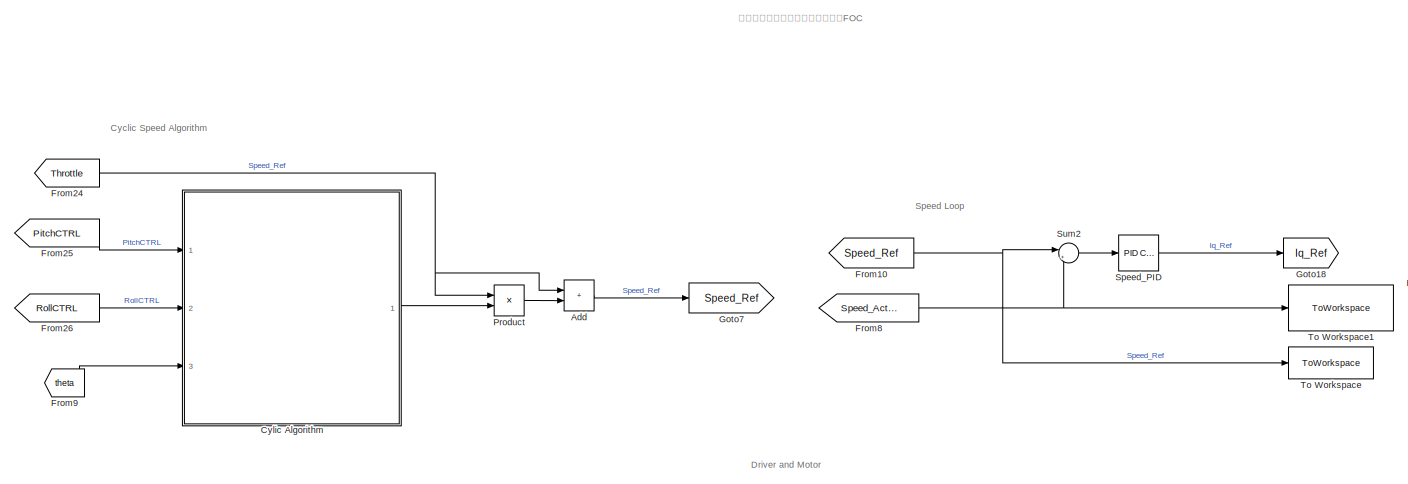
[diagram: root canvas - part 1/4, top left region]
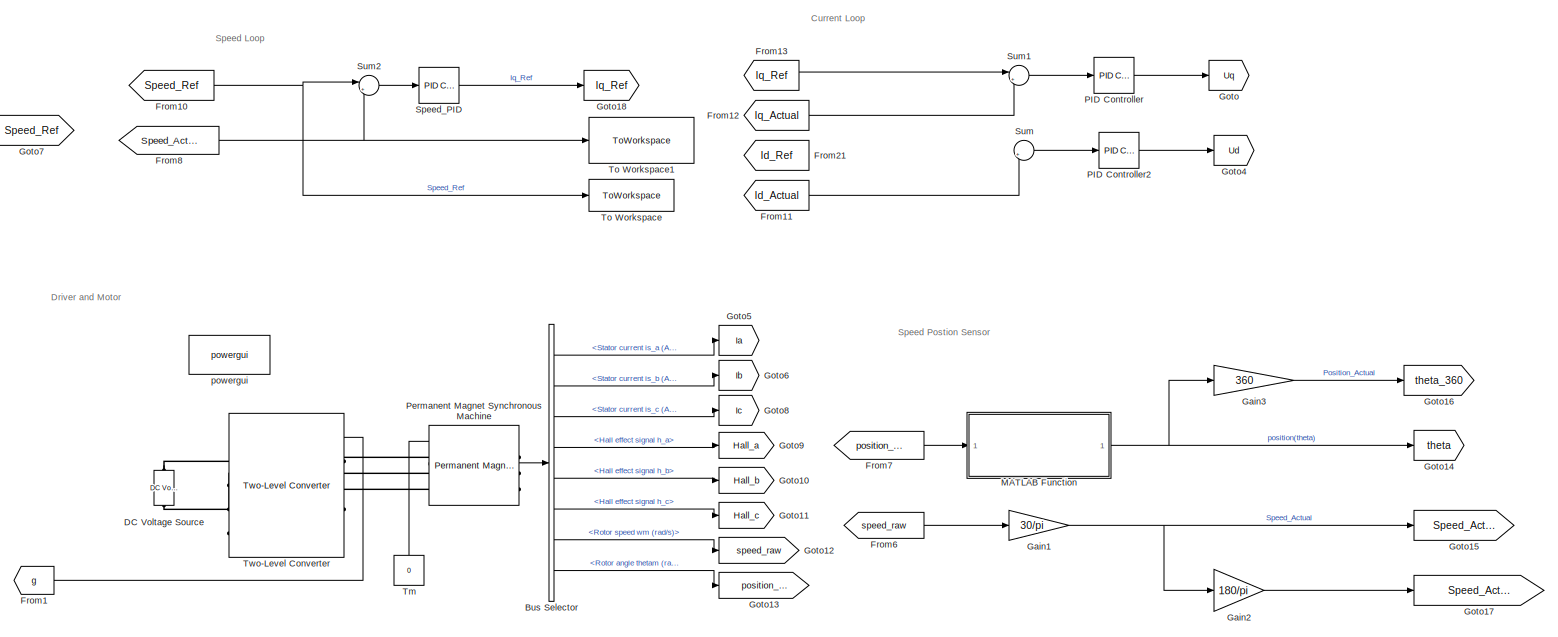
[diagram: root canvas - part 2/4, top center region]
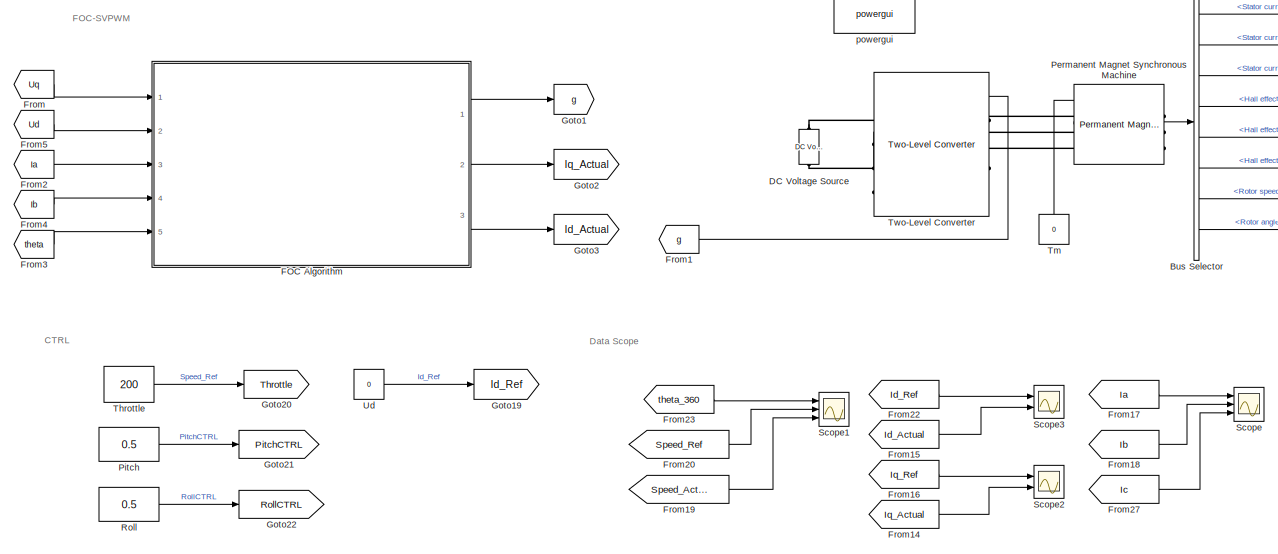
[diagram: root canvas - part 3/4, middle left region]
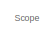
[diagram: root canvas - part 4/4, bottom right region]
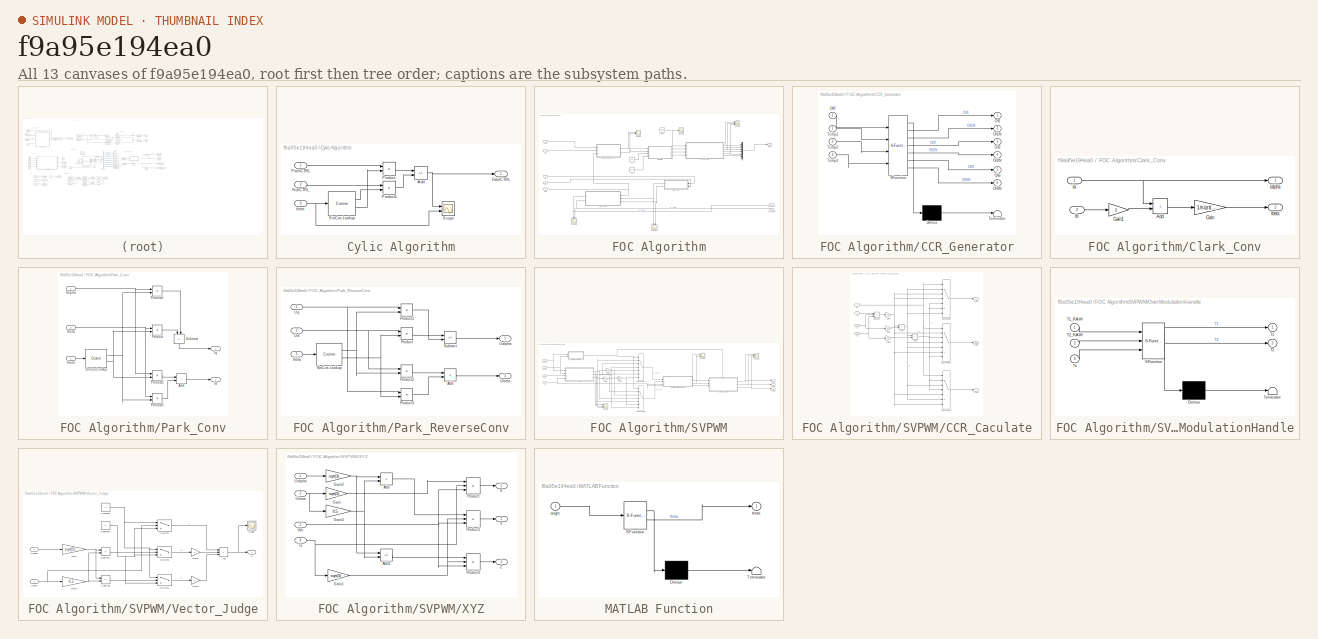
[diagram: thumbnail index - all 13 canvases of the model, root first then tree order]
MODEL slx_f9a95e194ea0
KIND model
CONFIG AbsTol = auto
CONFIG EnableMultiTasking = off
CONFIG FixedStep = 0.0001
CONFIG MaxStep = auto
CONFIG MinStep = auto
CONFIG RelTol = 1e-3
CONFIG SampleTimeConstraint = Unconstrained
CONFIG SolverName = FixedStepDiscrete
CONFIG StartTime = 0.0
CONFIG StopTime = 1
BLOCK [Sum] Add
  IconShape = rectangular
  Ports = [2, 1]
BLOCK [BusSelector] Bus Selector
  OutputSignals = Stator current is_a (A),Stator current is_b (A),Stator current is_c (A),Hall effect signal h_a,Hall effect signal h_b,Hall effect signal h_c,Rotor speed wm (rad/s),Rotor angle thetam (rad)
  Ports = [1, 8]
BLOCK [SubSystem] Cylic Algorithm
  Ports = [3, 1]
  RequestExecContextInheritance = off
BLOCK [Sum] Cylic Algorithm/Add
  IconShape = rectangular
  Inputs = --
  Ports = [2, 1]
BLOCK [Outport] Cylic Algorithm/FatorCTRL
BLOCK [Inport] Cylic Algorithm/PitchCTRL
BLOCK [Product] Cylic Algorithm/Product
  Ports = [2, 1]
BLOCK [Product] Cylic Algorithm/Product1
  Ports = [2, 1]
BLOCK [Inport] Cylic Algorithm/RollCTRL
  Port = 2
BLOCK [Scope] Cylic Algorithm/Scope
  Floating = off
  NumInputPorts = 2
  Ports = [2]
  ScopeSpecificationString = Simulink.scopes.TimeScopeBlockCfg('CurrentConfiguration', extmgr.ConfigurationSet(extmgr.Configuration('Core','General UI',true),extmgr.Configuration('Core','Source UI',true),extmgr.Configuration('Sources','WiredSimulink',true,'DataLoggingVariableName','ScopeData5'),extmgr.Configuration('Visuals','Time Domain',true,'SerializedDisplays',{struct('MinYLimReal','-1.205','MaxYLimReal','1.245','YLabelRe...<+1546ch>
BLOCK [Reference] Cylic Algorithm/SinCos Lookup  REF=simulink/Lookup
Tables/Cosine
  Ports = [1, 2]
  SourceBlock = simulink/Lookup\nTables/Cosine
  SourceProductBaseCode = SL
  SourceType = Sine and Cosine
BLOCK [Inport] Cylic Algorithm/theta
  Port = 3
BLOCK [Reference] DC Voltage Source  REF=spsDCVoltageSourceLib/DC Voltage Source
  NameLocation = top
  Ports = [0, 0, 0, 0, 0, 1, 1]
  SourceBlock = spsDCVoltageSourceLib/DC Voltage Source
  SourceProductBaseCode = PS
  SourceType = DC Voltage Source
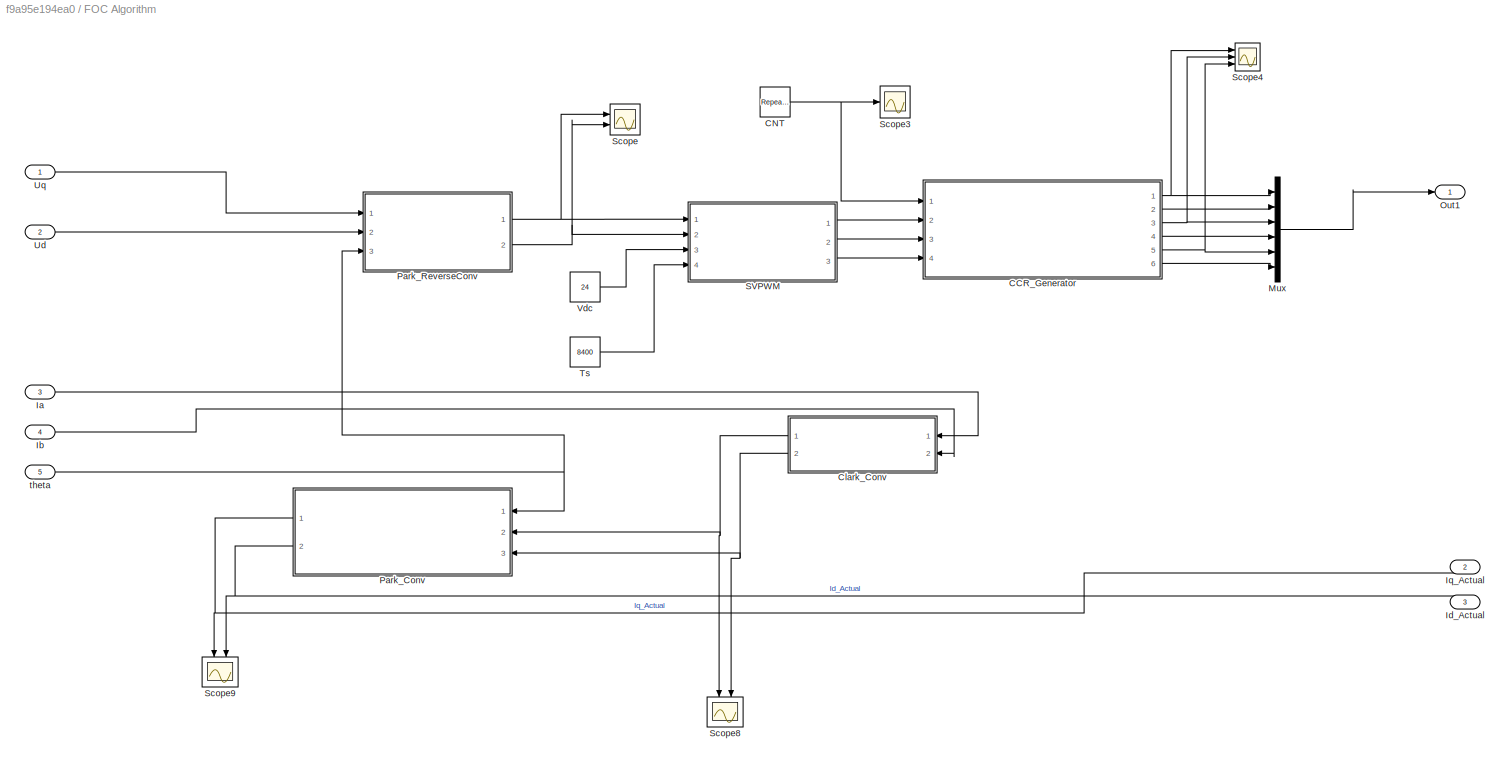
BLOCK [SubSystem] FOC Algorithm
  Ports = [5, 3]
  RequestExecContextInheritance = off
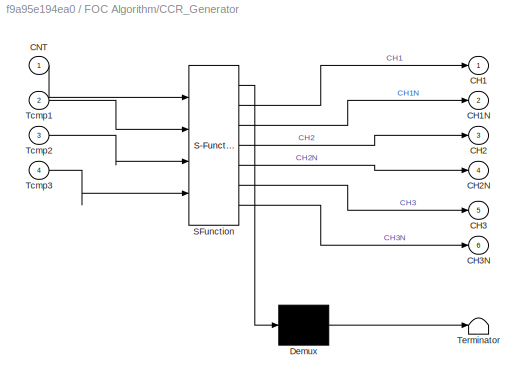
BLOCK [SubSystem] FOC Algorithm/CCR_Generator
  ErrorFcn = Stateflow.Translate.translate
  PermitHierarchicalResolution = ExplicitOnly
  Ports = [4, 6]
  RequestExecContextInheritance = off
  SFBlockType = MATLAB Function
  TreatAsAtomicUnit = on
BLOCK [Demux] FOC Algorithm/CCR_Generator/ Demux 
  Outputs = 1
  Ports = [1, 1]
BLOCK [S-Function] FOC Algorithm/CCR_Generator/ SFunction 
  EnableBusSupport = on
  FunctionName = sf_sfun
  PortCounts = [4 7]
  Ports = [4, 7]
  SFcnIsStateOwnerBlock = off
  SFunctionDeploymentMode = off
  Tag = Stateflow S-Function 1
BLOCK [Terminator] FOC Algorithm/CCR_Generator/ Terminator 
BLOCK [Outport] FOC Algorithm/CCR_Generator/CH1
BLOCK [Outport] FOC Algorithm/CCR_Generator/CH1N
  Port = 2
BLOCK [Outport] FOC Algorithm/CCR_Generator/CH2
  Port = 3
BLOCK [Outport] FOC Algorithm/CCR_Generator/CH2N
  Port = 4
BLOCK [Outport] FOC Algorithm/CCR_Generator/CH3
  Port = 5
BLOCK [Outport] FOC Algorithm/CCR_Generator/CH3N
  Port = 6
BLOCK [Inport] FOC Algorithm/CCR_Generator/CNT
BLOCK [Inport] FOC Algorithm/CCR_Generator/Tcmp1
  Port = 2
BLOCK [Inport] FOC Algorithm/CCR_Generator/Tcmp2
  Port = 3
BLOCK [Inport] FOC Algorithm/CCR_Generator/Tcmp3
  Port = 4
BLOCK [Reference] FOC Algorithm/CNT  REF=simulink/Sources/Repeating
Sequence
  Ports = [0, 1]
  SourceBlock = simulink/Sources/Repeating\nSequence
  SourceProductBaseCode = SL
  SourceType = Repeating table
BLOCK [SubSystem] FOC Algorithm/Clark_Conv
  Ports = [2, 2]
  RequestExecContextInheritance = off
BLOCK [Sum] FOC Algorithm/Clark_Conv/Add
  IconShape = rectangular
  Ports = [2, 1]
BLOCK [Gain] FOC Algorithm/Clark_Conv/Gain
  Gain = 1/sqrt(3)
BLOCK [Gain] FOC Algorithm/Clark_Conv/Gain1
  Gain = 2
BLOCK [Inport] FOC Algorithm/Clark_Conv/Ia
BLOCK [Outport] FOC Algorithm/Clark_Conv/Ialpha
BLOCK [Inport] FOC Algorithm/Clark_Conv/Ib
  Port = 2
BLOCK [Outport] FOC Algorithm/Clark_Conv/Ibeta
  Port = 2
BLOCK [Inport] FOC Algorithm/Ia
  Port = 3
BLOCK [Inport] FOC Algorithm/Ib
  Port = 4
BLOCK [Outport] FOC Algorithm/Id_Actual
  Port = 3
BLOCK [Outport] FOC Algorithm/Iq_Actual
  Port = 2
BLOCK [Mux] FOC Algorithm/Mux
  DisplayOption = bar
  Inputs = 6
  Ports = [6, 1]
BLOCK [Outport] FOC Algorithm/Out1
BLOCK [SubSystem] FOC Algorithm/Park_Conv
  Ports = [3, 2]
  RequestExecContextInheritance = off
BLOCK [Sum] FOC Algorithm/Park_Conv/Add
  IconShape = rectangular
  Ports = [2, 1]
BLOCK [Inport] FOC Algorithm/Park_Conv/Ialpha
  Port = 2
BLOCK [Inport] FOC Algorithm/Park_Conv/Ibeta
  Port = 3
BLOCK [Outport] FOC Algorithm/Park_Conv/Id
  Port = 2
BLOCK [Outport] FOC Algorithm/Park_Conv/Iq
BLOCK [Product] FOC Algorithm/Park_Conv/Product
  Ports = [2, 1]
BLOCK [Product] FOC Algorithm/Park_Conv/Product1
  Ports = [2, 1]
BLOCK [Product] FOC Algorithm/Park_Conv/Product2
  Ports = [2, 1]
BLOCK [Product] FOC Algorithm/Park_Conv/Product3
  Ports = [2, 1]
BLOCK [Reference] FOC Algorithm/Park_Conv/SinCos Lookup  REF=simulink/Lookup
Tables/Cosine
  Ports = [1, 2]
  SourceBlock = simulink/Lookup\nTables/Cosine
  SourceProductBaseCode = SL
  SourceType = Sine and Cosine
BLOCK [Sum] FOC Algorithm/Park_Conv/Subtract
  IconShape = rectangular
  Inputs = +-
  NameLocation = right
  Ports = [2, 1]
BLOCK [Inport] FOC Algorithm/Park_Conv/theta
BLOCK [SubSystem] FOC Algorithm/Park_ReverseConv
  Ports = [3, 2]
  RequestExecContextInheritance = off
BLOCK [Sum] FOC Algorithm/Park_ReverseConv/Add
  IconShape = rectangular
  Ports = [2, 1]
BLOCK [Product] FOC Algorithm/Park_ReverseConv/Product
  Ports = [2, 1]
BLOCK [Product] FOC Algorithm/Park_ReverseConv/Product1
  Ports = [2, 1]
BLOCK [Product] FOC Algorithm/Park_ReverseConv/Product2
  Ports = [2, 1]
BLOCK [Product] FOC Algorithm/Park_ReverseConv/Product3
  Ports = [2, 1]
BLOCK [Reference] FOC Algorithm/Park_ReverseConv/SinCos Lookup  REF=simulink/Lookup
Tables/Cosine
  Ports = [1, 2]
  SourceBlock = simulink/Lookup\nTables/Cosine
  SourceProductBaseCode = SL
  SourceType = Sine and Cosine
BLOCK [Sum] FOC Algorithm/Park_ReverseConv/Subtract
  IconShape = rectangular
  Inputs = +-
  Ports = [2, 1]
BLOCK [Outport] FOC Algorithm/Park_ReverseConv/Ualpha
BLOCK [Outport] FOC Algorithm/Park_ReverseConv/Ubeta
  Port = 2
BLOCK [Inport] FOC Algorithm/Park_ReverseConv/Ud
  Port = 2
BLOCK [Inport] FOC Algorithm/Park_ReverseConv/Uq
BLOCK [Inport] FOC Algorithm/Park_ReverseConv/theta
  Port = 3
BLOCK [SubSystem] FOC Algorithm/SVPWM
  Ports = [4, 3]
  RequestExecContextInheritance = off
BLOCK [SubSystem] FOC Algorithm/SVPWM/CCR_Caculate
  PortSchema = {"entries":[{"content":{"sides":[{"content":{"connectorIds":["In1","In2","In3"]},"type":"ConnectorPlacement.EquallySpacedRectSide","uuid":"41d89106-695f-4d7e-9c99-c52170b99868"},{"content":{"connectorIds":["Out1","Out2","Out3"],"side":"RIGHT"},"type":"ConnectorPlacement.EquallySpacedRectSide","uuid":"0fa1e6b9-7088-4c16-9dd3-c016449aae3e"},{"content":{"connectorIds":["In4"],"side":"TOP"},"type":"Co...<+271ch>
  Ports = [4, 3]
  RequestExecContextInheritance = off
BLOCK [Sum] FOC Algorithm/SVPWM/CCR_Caculate/Add
  IconShape = rectangular
  Ports = [2, 1]
BLOCK [Sum] FOC Algorithm/SVPWM/CCR_Caculate/Add1
  IconShape = rectangular
  Ports = [2, 1]
BLOCK [Gain] FOC Algorithm/SVPWM/CCR_Caculate/Gain
  Gain = 1/4
BLOCK [Gain] FOC Algorithm/SVPWM/CCR_Caculate/Gain1
  Gain = 1/2
BLOCK [Gain] FOC Algorithm/SVPWM/CCR_Caculate/Gain2
  Gain = 1/2
BLOCK [MultiPortSwitch] FOC Algorithm/SVPWM/CCR_Caculate/Index Vector
  InputSameDT = off
  Inputs = 6
  Ports = [7, 1]
  SaturateOnIntegerOverflow = off
BLOCK [MultiPortSwitch] FOC Algorithm/SVPWM/CCR_Caculate/Index Vector1
  InputSameDT = off
  Inputs = 6
  Ports = [7, 1]
  SaturateOnIntegerOverflow = off
BLOCK [MultiPortSwitch] FOC Algorithm/SVPWM/CCR_Caculate/Index Vector2
  InputSameDT = off
  Inputs = 6
  Ports = [7, 1]
  SaturateOnIntegerOverflow = off
BLOCK [Inport] FOC Algorithm/SVPWM/CCR_Caculate/N
  Port = 4
BLOCK [Sum] FOC Algorithm/SVPWM/CCR_Caculate/Subtract
  IconShape = rectangular
  Inputs = +--
  Ports = [3, 1]
BLOCK [Inport] FOC Algorithm/SVPWM/CCR_Caculate/T1
BLOCK [Inport] FOC Algorithm/SVPWM/CCR_Caculate/T2
  Port = 2
BLOCK [Outport] FOC Algorithm/SVPWM/CCR_Caculate/Tcmp1
BLOCK [Outport] FOC Algorithm/SVPWM/CCR_Caculate/Tcmp2
  Port = 2
BLOCK [Outport] FOC Algorithm/SVPWM/CCR_Caculate/Tcmp3
  Port = 3
BLOCK [Inport] FOC Algorithm/SVPWM/CCR_Caculate/Ts
  Port = 3
BLOCK [Gain] FOC Algorithm/SVPWM/Gain
  Gain = -1
BLOCK [Gain] FOC Algorithm/SVPWM/Gain1
  Gain = -1
BLOCK [Gain] FOC Algorithm/SVPWM/Gain2
  Gain = -1
BLOCK [MultiPortSwitch] FOC Algorithm/SVPWM/Index Vector
  InputSameDT = off
  Inputs = 6
  Ports = [7, 1]
  SaturateOnIntegerOverflow = off
BLOCK [MultiPortSwitch] FOC Algorithm/SVPWM/Index Vector1
  InputSameDT = off
  Inputs = 6
  Ports = [7, 1]
  SaturateOnIntegerOverflow = off
BLOCK [SubSystem] FOC Algorithm/SVPWM/OverModulationHandle
  ErrorFcn = Stateflow.Translate.translate
  PermitHierarchicalResolution = ExplicitOnly
  Ports = [3, 2]
  RequestExecContextInheritance = off
  SFBlockType = MATLAB Function
  TreatAsAtomicUnit = on
BLOCK [Demux] FOC Algorithm/SVPWM/OverModulationHandle/ Demux 
  Outputs = 1
  Ports = [1, 1]
BLOCK [S-Function] FOC Algorithm/SVPWM/OverModulationHandle/ SFunction 
  EnableBusSupport = on
  FunctionName = sf_sfun
  PortCounts = [3 3]
  Ports = [3, 3]
  SFcnIsStateOwnerBlock = off
  SFunctionDeploymentMode = off
  Tag = Stateflow S-Function 2
BLOCK [Terminator] FOC Algorithm/SVPWM/OverModulationHandle/ Terminator 
BLOCK [Outport] FOC Algorithm/SVPWM/OverModulationHandle/T1
BLOCK [Inport] FOC Algorithm/SVPWM/OverModulationHandle/T1_RAW
BLOCK [Outport] FOC Algorithm/SVPWM/OverModulationHandle/T2
  Port = 2
BLOCK [Inport] FOC Algorithm/SVPWM/OverModulationHandle/T2_RAW
  Port = 2
BLOCK [Inport] FOC Algorithm/SVPWM/OverModulationHandle/Ts
  Port = 3
BLOCK [Scope] FOC Algorithm/SVPWM/Scope
  Floating = off
  NumInputPorts = 3
  Ports = [3]
  ScopeSpecificationString = Simulink.scopes.TimeScopeBlockCfg('CurrentConfiguration', extmgr.ConfigurationSet(extmgr.Configuration('Core','General UI',true),extmgr.Configuration('Core','Source UI',true),extmgr.Configuration('Sources','WiredSimulink',true,'DataLoggingVariableName','ScopeData2'),extmgr.Configuration('Visuals','Time Domain',true,'SerializedDisplays',{struct('MinYLimReal','-10840.7399','MaxYLimReal','10882.04333...<+1438ch>
BLOCK [Scope] FOC Algorithm/SVPWM/Scope1
  Floating = off
  NumInputPorts = 2
  Ports = [2]
  ScopeSpecificationString = Simulink.scopes.TimeScopeBlockCfg('CurrentConfiguration', extmgr.ConfigurationSet(extmgr.Configuration('Core','General UI',true),extmgr.Configuration('Core','Source UI',true),extmgr.Configuration('Sources','WiredSimulink',true,'DataLoggingVariableName','ScopeData3'),extmgr.Configuration('Visuals','Time Domain',true,'SerializedDisplays',{struct('MinYLimReal','-881.09887','MaxYLimReal','7929.96151',...<+1456ch>
BLOCK [Scope] FOC Algorithm/SVPWM/Scope2
  Floating = off
  NumInputPorts = 3
  Ports = [3]
  ScopeSpecificationString = Simulink.scopes.TimeScopeBlockCfg('CurrentConfiguration', extmgr.ConfigurationSet(extmgr.Configuration('Core','General UI',true),extmgr.Configuration('Core','Source UI',true),extmgr.Configuration('Sources','WiredSimulink',true,'DataLoggingVariableName','ScopeData4'),extmgr.Configuration('Visuals','Time Domain',true,'SerializedDisplays',{struct('MinYLimReal','3729.03398','MaxYLimReal','4698.76641',...<+1503ch>
BLOCK [Outport] FOC Algorithm/SVPWM/Tcmp1
BLOCK [Outport] FOC Algorithm/SVPWM/Tcmp2
  Port = 2
BLOCK [Outport] FOC Algorithm/SVPWM/Tcmp3
  Port = 3
BLOCK [Inport] FOC Algorithm/SVPWM/Ts
  Port = 4
BLOCK [Inport] FOC Algorithm/SVPWM/Ualpha
BLOCK [Inport] FOC Algorithm/SVPWM/Ubeta
  Port = 2
BLOCK [Inport] FOC Algorithm/SVPWM/Vdc
  Port = 3
BLOCK [SubSystem] FOC Algorithm/SVPWM/Vector_Judge
  Ports = [2, 1]
  RequestExecContextInheritance = off
BLOCK [Sum] FOC Algorithm/SVPWM/Vector_Judge/Add
  IconShape = rectangular
  Inputs = +++
  Ports = [3, 1]
BLOCK [Constant] FOC Algorithm/SVPWM/Vector_Judge/Constant
BLOCK [Constant] FOC Algorithm/SVPWM/Vector_Judge/Constant1
  Value = 0
BLOCK [Gain] FOC Algorithm/SVPWM/Vector_Judge/Gain
  Gain = sqrt(3)/2
BLOCK [Gain] FOC Algorithm/SVPWM/Vector_Judge/Gain1
  Gain = 0.5
BLOCK [Gain] FOC Algorithm/SVPWM/Vector_Judge/Gain2
  Gain = 2
BLOCK [Gain] FOC Algorithm/SVPWM/Vector_Judge/Gain3
  Gain = 4
BLOCK [Outport] FOC Algorithm/SVPWM/Vector_Judge/N
BLOCK [Scope] FOC Algorithm/SVPWM/Vector_Judge/Scope
  Floating = off
  NumInputPorts = 1
  Ports = [1]
  ScopeSpecificationString = Simulink.scopes.TimeScopeBlockCfg('CurrentConfiguration', extmgr.ConfigurationSet(extmgr.Configuration('Core','General UI',true),extmgr.Configuration('Core','Source UI',true),extmgr.Configuration('Sources','WiredSimulink',true,'DataLoggingVariableName','ScopeData1'),extmgr.Configuration('Visuals','Time Domain',true,'SerializedDisplays',{struct('MinYLimReal','0.375','MaxYLimReal','6.625','YLabelRea...<+1371ch>
BLOCK [Sum] FOC Algorithm/SVPWM/Vector_Judge/Subtract
  IconShape = rectangular
  Inputs = --
  Ports = [2, 1]
BLOCK [Sum] FOC Algorithm/SVPWM/Vector_Judge/Subtract1
  IconShape = rectangular
  Inputs = +-
  Ports = [2, 1]
BLOCK [Switch] FOC Algorithm/SVPWM/Vector_Judge/Switch
  Criteria = u2 > Threshold
  InputSameDT = off
  SaturateOnIntegerOverflow = off
BLOCK [Switch] FOC Algorithm/SVPWM/Vector_Judge/Switch1
  Criteria = u2 > Threshold
  InputSameDT = off
  SaturateOnIntegerOverflow = off
BLOCK [Switch] FOC Algorithm/SVPWM/Vector_Judge/Switch2
  Criteria = u2 > Threshold
  InputSameDT = off
  SaturateOnIntegerOverflow = off
BLOCK [Inport] FOC Algorithm/SVPWM/Vector_Judge/Ualpha
BLOCK [Inport] FOC Algorithm/SVPWM/Vector_Judge/Ubeta
  Port = 2
BLOCK [SubSystem] FOC Algorithm/SVPWM/XYZ
  Ports = [4, 3]
  RequestExecContextInheritance = off
BLOCK [Sum] FOC Algorithm/SVPWM/XYZ/Add
  IconShape = rectangular
  Ports = [2, 1]
BLOCK [Sum] FOC Algorithm/SVPWM/XYZ/Add1
  IconShape = rectangular
  Inputs = -+
  Ports = [2, 1]
BLOCK [Gain] FOC Algorithm/SVPWM/XYZ/Gain
  Gain = sqrt(3)
BLOCK [Gain] FOC Algorithm/SVPWM/XYZ/Gain1
  Gain = sqrt(3)
BLOCK [Gain] FOC Algorithm/SVPWM/XYZ/Gain2
  Gain = sqrt(3)/2
BLOCK [Gain] FOC Algorithm/SVPWM/XYZ/Gain3
  Gain = 0.5
BLOCK [Product] FOC Algorithm/SVPWM/XYZ/Product
  Inputs = **/
  Ports = [3, 1]
BLOCK [Product] FOC Algorithm/SVPWM/XYZ/Product1
  Inputs = **/
  Ports = [3, 1]
BLOCK [Product] FOC Algorithm/SVPWM/XYZ/Product2
  Inputs = **/
  Ports = [3, 1]
BLOCK [Inport] FOC Algorithm/SVPWM/XYZ/Ts
  Port = 4
BLOCK [Inport] FOC Algorithm/SVPWM/XYZ/Ualpha
BLOCK [Inport] FOC Algorithm/SVPWM/XYZ/Ubeta
  Port = 2
BLOCK [Inport] FOC Algorithm/SVPWM/XYZ/Vdc
  Port = 3
BLOCK [Outport] FOC Algorithm/SVPWM/XYZ/X
BLOCK [Outport] FOC Algorithm/SVPWM/XYZ/Y
  Port = 2
BLOCK [Outport] FOC Algorithm/SVPWM/XYZ/Z
  Port = 3
BLOCK [Scope] FOC Algorithm/Scope
  Floating = off
  NumInputPorts = 2
  Ports = [2]
  ScopeSpecificationString = Simulink.scopes.TimeScopeBlockCfg('CurrentConfiguration', extmgr.ConfigurationSet(extmgr.Configuration('Core','General UI',true),extmgr.Configuration('Core','Source UI',true),extmgr.Configuration('Sources','WiredSimulink',true),extmgr.Configuration('Visuals','Time Domain',true,'SerializedDisplays',{struct('MinYLimReal','-45.70759','MaxYLimReal','41.82772','YLabelReal','','MinYLimMag','0.00000','Ma...<+1708ch>
BLOCK [Scope] FOC Algorithm/Scope3
  Floating = off
  NumInputPorts = 1
  Ports = [1]
  ScopeSpecificationString = Simulink.scopes.TimeScopeBlockCfg('CurrentConfiguration', extmgr.ConfigurationSet(extmgr.Configuration('Core','General UI',true),extmgr.Configuration('Core','Source UI',true),extmgr.Configuration('Sources','WiredSimulink',true,'DataLoggingVariableName','ScopeData1'),extmgr.Configuration('Visuals','Time Domain',true,'SerializedDisplays',{struct('MinYLimReal','-525.00000','MaxYLimReal','4725.00000',...<+1407ch>
BLOCK [Scope] FOC Algorithm/Scope4
  Floating = off
  NumInputPorts = 3
  Ports = [3]
  ScopeSpecificationString = Simulink.scopes.TimeScopeBlockCfg('CurrentConfiguration', extmgr.ConfigurationSet(extmgr.Configuration('Core','General UI',true),extmgr.Configuration('Core','Source UI',true),extmgr.Configuration('Sources','WiredSimulink',true,'DataLoggingVariableName','ScopeData2'),extmgr.Configuration('Visuals','Time Domain',true,'SerializedDisplays',{struct('MinYLimReal','0.45013','MaxYLimReal','0.66112','YLabe...<+2805ch>
BLOCK [Scope] FOC Algorithm/Scope8
  Floating = off
  NameLocation = right
  NumInputPorts = 2
  Ports = [2]
  ScopeSpecificationString = Simulink.scopes.TimeScopeBlockCfg('CurrentConfiguration', extmgr.ConfigurationSet(extmgr.Configuration('Core','General UI',true),extmgr.Configuration('Core','Source UI',true),extmgr.Configuration('Sources','WiredSimulink',true,'DataLoggingVariableName','ScopeData7'),extmgr.Configuration('Visuals','Time Domain',true,'SerializedDisplays',{struct('MinYLimReal','-27.26779','MaxYLimReal','32.97962','YL...<+1713ch>
BLOCK [Scope] FOC Algorithm/Scope9
  Floating = off
  NameLocation = right
  NumInputPorts = 2
  Ports = [2]
  ScopeSpecificationString = Simulink.scopes.TimeScopeBlockCfg('CurrentConfiguration', extmgr.ConfigurationSet(extmgr.Configuration('Core','General UI',true),extmgr.Configuration('Core','Source UI',true),extmgr.Configuration('Sources','WiredSimulink',true,'DataLoggingVariableName','ScopeData8'),extmgr.Configuration('Visuals','Time Domain',true,'SerializedDisplays',{struct('MinYLimReal','-13.24911','MaxYLimReal','21.03967','YL...<+1441ch>
BLOCK [Constant] FOC Algorithm/Ts
  Value = 8400
BLOCK [Inport] FOC Algorithm/Ud
  Port = 2
BLOCK [Inport] FOC Algorithm/Uq
BLOCK [Constant] FOC Algorithm/Vdc
  Value = 24
BLOCK [Inport] FOC Algorithm/theta
  Port = 5
BLOCK [From] From
  GotoTag = Uq
BLOCK [From] From1
  GotoTag = g
BLOCK [From] From10
  GotoTag = Speed_Ref
BLOCK [From] From11
  GotoTag = Id_Actual
BLOCK [From] From12
  GotoTag = Iq_Actual
BLOCK [From] From13
  GotoTag = Iq_Ref
BLOCK [From] From14
  GotoTag = Iq_Actual
BLOCK [From] From15
  GotoTag = Id_Actual
BLOCK [From] From16
  GotoTag = Iq_Ref
BLOCK [From] From17
  GotoTag = Ia
BLOCK [From] From18
  GotoTag = Ib
BLOCK [From] From19
  GotoTag = Speed_Actual
BLOCK [From] From2
  GotoTag = Ia
BLOCK [From] From20
  GotoTag = Speed_Ref
BLOCK [From] From21
  GotoTag = Id_Ref
BLOCK [From] From22
  GotoTag = Id_Ref
BLOCK [From] From23
  GotoTag = theta_360
BLOCK [From] From24
  GotoTag = Throttle
BLOCK [From] From25
  GotoTag = PitchCTRL
BLOCK [From] From26
  GotoTag = RollCTRL
BLOCK [From] From27
  GotoTag = Ic
BLOCK [From] From3
  GotoTag = theta
BLOCK [From] From4
  GotoTag = Ib
BLOCK [From] From5
  GotoTag = Ud
BLOCK [From] From6
  GotoTag = speed_raw
BLOCK [From] From7
  GotoTag = position_raw
BLOCK [From] From8
  GotoTag = Speed_Actual
BLOCK [From] From9
  GotoTag = theta
BLOCK [Gain] Gain1
  Gain = 30/pi
BLOCK [Gain] Gain2
  Gain = 180/pi
  NameLocation = top
BLOCK [Gain] Gain3
  Gain = 360
BLOCK [Goto] Goto
  GotoTag = Uq
BLOCK [Goto] Goto1
  GotoTag = g
BLOCK [Goto] Goto10
  GotoTag = Hall_b
  NameLocation = left
BLOCK [Goto] Goto11
  GotoTag = Hall_c
  NameLocation = left
BLOCK [Goto] Goto12
  GotoTag = speed_raw
  NameLocation = left
BLOCK [Goto] Goto13
  GotoTag = position_raw
  NameLocation = left
BLOCK [Goto] Goto14
  GotoTag = theta
BLOCK [Goto] Goto15
  GotoTag = Speed_Actual
BLOCK [Goto] Goto16
  GotoTag = theta_360
BLOCK [Goto] Goto17
  GotoTag = Speed_Actual_rpm
BLOCK [Goto] Goto18
  GotoTag = Iq_Ref
BLOCK [Goto] Goto19
  GotoTag = Id_Ref
BLOCK [Goto] Goto2
  GotoTag = Iq_Actual
BLOCK [Goto] Goto20
  GotoTag = Throttle
BLOCK [Goto] Goto21
  GotoTag = PitchCTRL
BLOCK [Goto] Goto22
  GotoTag = RollCTRL
BLOCK [Goto] Goto3
  GotoTag = Id_Actual
BLOCK [Goto] Goto4
  GotoTag = Ud
BLOCK [Goto] Goto5
  GotoTag = Ia
  NameLocation = left
BLOCK [Goto] Goto6
  GotoTag = Ib
  NameLocation = left
BLOCK [Goto] Goto7
  GotoTag = Speed_Ref
BLOCK [Goto] Goto8
  GotoTag = Ic
  NameLocation = left
BLOCK [Goto] Goto9
  GotoTag = Hall_a
  NameLocation = left
BLOCK [SubSystem] MATLAB Function
  ErrorFcn = Stateflow.Translate.translate
  NameLocation = top
  PermitHierarchicalResolution = ExplicitOnly
  Ports = [1, 1]
  RequestExecContextInheritance = off
  SFBlockType = MATLAB Function
  TreatAsAtomicUnit = on
BLOCK [Demux] MATLAB Function/ Demux 
  Outputs = 1
  Ports = [1, 1]
BLOCK [S-Function] MATLAB Function/ SFunction 
  EnableBusSupport = on
  FunctionName = sf_sfun
  PortCounts = [1 2]
  Ports = [1, 2]
  SFcnIsStateOwnerBlock = off
  SFunctionDeploymentMode = off
  Tag = Stateflow S-Function 3
BLOCK [Terminator] MATLAB Function/ Terminator 
BLOCK [Inport] MATLAB Function/angle
BLOCK [Outport] MATLAB Function/theta
BLOCK [Reference] PID Controller  REF=slpidlib/PID Controller
  Ports = [1, 1]
  SourceBlock = slpidlib/PID Controller
  SourceProductBaseCode = SL
  SourceType = PID 1dof
BLOCK [Reference] PID Controller2  REF=slpidlib/PID Controller
  Ports = [1, 1]
  SourceBlock = slpidlib/PID Controller
  SourceProductBaseCode = SL
  SourceType = PID 1dof
BLOCK [Reference] Permanent Magnet Synchronous Machine  REF=spsPermanentMagnetSynchronousMachineLib/Permanent Magnet
Synchronous Machine
  Ports = [1, 1, 0, 0, 0, 3]
  SourceBlock = spsPermanentMagnetSynchronousMachineLib/Permanent Magnet\nSynchronous Machine
  SourceProductBaseCode = PS
  SourceType = Permanent Magnet Synchronous Machine
BLOCK [Constant] Pitch
  Value = 0.5
BLOCK [Product] Product
  Ports = [2, 1]
BLOCK [Constant] Roll
  Value = 0.5
BLOCK [Scope] Scope
  Floating = off
  NumInputPorts = 3
  Ports = [3]
  ScopeSpecificationString = Simulink.scopes.TimeScopeBlockCfg('CurrentConfiguration', extmgr.ConfigurationSet(extmgr.Configuration('Core','General UI',true),extmgr.Configuration('Core','Source UI',true),extmgr.Configuration('Sources','WiredSimulink',true,'DataLoggingVariableName','ScopeData1'),extmgr.Configuration('Visuals','Time Domain',true,'SerializedDisplays',{struct('MinYLimReal','-26.47827','MaxYLimReal','46.78851','YL...<+1490ch>
BLOCK [Scope] Scope1
  Floating = off
  NumInputPorts = 3
  Ports = [3]
  ScopeSpecificationString = Simulink.scopes.TimeScopeBlockCfg('CurrentConfiguration', extmgr.ConfigurationSet(extmgr.Configuration('Core','General UI',true),extmgr.Configuration('Core','Source UI',true),extmgr.Configuration('Sources','WiredSimulink',true,'DataLoggingVariableName','ScopeData2'),extmgr.Configuration('Visuals','Time Domain',true,'SerializedDisplays',{struct('MinYLimReal','-44.99691','MaxYLimReal','404.97217','Y...<+2714ch>
BLOCK [Scope] Scope2
  Floating = off
  NumInputPorts = 2
  Ports = [2]
  ScopeSpecificationString = Simulink.scopes.TimeScopeBlockCfg('CurrentConfiguration', extmgr.ConfigurationSet(extmgr.Configuration('Core','General UI',true),extmgr.Configuration('Core','Source UI',true),extmgr.Configuration('Sources','WiredSimulink',true,'DataLoggingVariableName','ScopeData3'),extmgr.Configuration('Visuals','Time Domain',true,'SerializedDisplays',{struct('MinYLimReal','-27.32661','MaxYLimReal','114.19185','Y...<+1391ch>
BLOCK [Scope] Scope3
  Floating = off
  NumInputPorts = 2
  Ports = [2]
  ScopeSpecificationString = Simulink.scopes.TimeScopeBlockCfg('CurrentConfiguration', extmgr.ConfigurationSet(extmgr.Configuration('Core','General UI',true),extmgr.Configuration('Core','Source UI',true),extmgr.Configuration('Sources','WiredSimulink',true,'DataLoggingVariableName','ScopeData4'),extmgr.Configuration('Visuals','Time Domain',true,'SerializedDisplays',{struct('MinYLimReal','-30.8992','MaxYLimReal','17.91305','YLa...<+1383ch>
BLOCK [Reference] Speed_PID  REF=slpidlib/PID Controller
  Ports = [1, 1]
  SourceBlock = slpidlib/PID Controller
  SourceProductBaseCode = SL
  SourceType = PID 1dof
BLOCK [Sum] Sum
  Inputs = |+-
  Ports = [2, 1]
BLOCK [Sum] Sum1
  Inputs = |+-
  Ports = [2, 1]
BLOCK [Sum] Sum2
  Inputs = |+-
  Ports = [2, 1]
BLOCK [Constant] Throttle
  Value = 200
BLOCK [Constant] Tm
  NameLocation = right
  Value = 0
BLOCK [ToWorkspace] To Workspace
  Decimation = 2
  FixptAsFi = on
  MaxDataPoints = inf
  Ports = [1]
  SampleTime = -1
  SaveFormat = Structure With Time
  VariableName = Speed_ref
BLOCK [ToWorkspace] To Workspace1
  Decimation = 2
  FixptAsFi = on
  MaxDataPoints = inf
  Ports = [1]
  SampleTime = -1
  SaveFormat = Structure With Time
  VariableName = Speed_actual
BLOCK [Reference] Two-Level Converter  REF=spsTwoLevelConverterLib/Two-Level Converter
  NameLocation = top
  Ports = [2, 0, 0, 0, 0, 3, 2]
  SourceBlock = spsTwoLevelConverterLib/Two-Level Converter
  SourceProductBaseCode = PS
  SourceType = Two-Level Converter
BLOCK [Constant] Ud
  Value = 0
BLOCK [Reference] powergui  REF=spspowerguiLib/powergui
  Ports = []
  Priority = 1
  SourceBlock = spspowerguiLib/powergui
  SourceProductBaseCode = PS
  SourceType = PSB option menu block
ANNOTATION (root): 无斜盘旋翼机构的周期变转速控制FOC
ANNOTATION (root): CTRL
ANNOTATION (root): Current Loop
ANNOTATION (root): Cyclic Speed Algorithm
ANNOTATION (root): Data Scope
ANNOTATION (root): Driver and Motor
ANNOTATION (root): FOC-SVPWM
ANNOTATION (root): Scope
ANNOTATION (root): Speed Loop
ANNOTATION (root): Speed Postion Sensor
LINE Add:1 -> Goto7:1
LINE Bus Selector:1 -> Goto5:1
LINE Bus Selector:2 -> Goto6:1
LINE Bus Selector:3 -> Goto8:1
LINE Bus Selector:4 -> Goto9:1
LINE Bus Selector:5 -> Goto10:1
LINE Bus Selector:6 -> Goto11:1
LINE Bus Selector:7 -> Goto12:1
LINE Bus Selector:8 -> Goto13:1
NET Cylic Algorithm/Add:1 -> Cylic Algorithm/FatorCTRL:1, Cylic Algorithm/Scope:1
LINE Cylic Algorithm/PitchCTRL:1 -> Cylic Algorithm/Product:1
LINE Cylic Algorithm/Product1:1 -> Cylic Algorithm/Add:2
LINE Cylic Algorithm/Product:1 -> Cylic Algorithm/Add:1
LINE Cylic Algorithm/RollCTRL:1 -> Cylic Algorithm/Product1:1
LINE Cylic Algorithm/SinCos Lookup:1 -> Cylic Algorithm/Product1:2
LINE Cylic Algorithm/SinCos Lookup:2 -> Cylic Algorithm/Product:2
NET Cylic Algorithm/theta:1 -> Cylic Algorithm/Scope:2, Cylic Algorithm/SinCos Lookup:1
LINE Cylic Algorithm:1 -> Product:2
NET FOC Algorithm/CCR_Generator:1 -> FOC Algorithm/Mux:1, FOC Algorithm/Scope4:1
LINE FOC Algorithm/CCR_Generator:2 -> FOC Algorithm/Mux:2
NET FOC Algorithm/CCR_Generator:3 -> FOC Algorithm/Mux:3, FOC Algorithm/Scope4:2
LINE FOC Algorithm/CCR_Generator:4 -> FOC Algorithm/Mux:4
NET FOC Algorithm/CCR_Generator:5 -> FOC Algorithm/Mux:5, FOC Algorithm/Scope4:3
LINE FOC Algorithm/CCR_Generator:6 -> FOC Algorithm/Mux:6
NET FOC Algorithm/CNT:1 -> FOC Algorithm/CCR_Generator:1, FOC Algorithm/Scope3:1
LINE FOC Algorithm/Clark_Conv/Add:1 -> FOC Algorithm/Clark_Conv/Gain:1
LINE FOC Algorithm/Clark_Conv/Gain1:1 -> FOC Algorithm/Clark_Conv/Add:2
LINE FOC Algorithm/Clark_Conv/Gain:1 -> FOC Algorithm/Clark_Conv/Ibeta:1
NET FOC Algorithm/Clark_Conv/Ia:1 -> FOC Algorithm/Clark_Conv/Add:1, FOC Algorithm/Clark_Conv/Ialpha:1
LINE FOC Algorithm/Clark_Conv/Ib:1 -> FOC Algorithm/Clark_Conv/Gain1:1
NET FOC Algorithm/Clark_Conv:1 -> FOC Algorithm/Park_Conv:2, FOC Algorithm/Scope8:1
NET FOC Algorithm/Clark_Conv:2 -> FOC Algorithm/Park_Conv:3, FOC Algorithm/Scope8:2
LINE FOC Algorithm/Ia:1 -> FOC Algorithm/Clark_Conv:1
LINE FOC Algorithm/Ib:1 -> FOC Algorithm/Clark_Conv:2
LINE FOC Algorithm/Mux:1 -> FOC Algorithm/Out1:1
LINE FOC Algorithm/Park_Conv/Add:1 -> FOC Algorithm/Park_Conv/Id:1
NET FOC Algorithm/Park_Conv/Ialpha:1 -> FOC Algorithm/Park_Conv/Product1:1, FOC Algorithm/Park_Conv/Product2:1
NET FOC Algorithm/Park_Conv/Ibeta:1 -> FOC Algorithm/Park_Conv/Product3:1, FOC Algorithm/Park_Conv/Product:1
LINE FOC Algorithm/Park_Conv/Product1:1 -> FOC Algorithm/Park_Conv/Subtract:2
LINE FOC Algorithm/Park_Conv/Product2:1 -> FOC Algorithm/Park_Conv/Add:1
LINE FOC Algorithm/Park_Conv/Product3:1 -> FOC Algorithm/Park_Conv/Add:2
LINE FOC Algorithm/Park_Conv/Product:1 -> FOC Algorithm/Park_Conv/Subtract:1
NET FOC Algorithm/Park_Conv/SinCos Lookup:1 -> FOC Algorithm/Park_Conv/Product1:2, FOC Algorithm/Park_Conv/Product3:2
NET FOC Algorithm/Park_Conv/SinCos Lookup:2 -> FOC Algorithm/Park_Conv/Product2:2, FOC Algorithm/Park_Conv/Product:2
LINE FOC Algorithm/Park_Conv/Subtract:1 -> FOC Algorithm/Park_Conv/Iq:1
LINE FOC Algorithm/Park_Conv/theta:1 -> FOC Algorithm/Park_Conv/SinCos Lookup:1
NET FOC Algorithm/Park_Conv:1 -> FOC Algorithm/Iq_Actual:1, FOC Algorithm/Scope9:1
NET FOC Algorithm/Park_Conv:2 -> FOC Algorithm/Id_Actual:1, FOC Algorithm/Scope9:2
LINE FOC Algorithm/Park_ReverseConv/Add:1 -> FOC Algorithm/Park_ReverseConv/Ubeta:1
LINE FOC Algorithm/Park_ReverseConv/Product1:1 -> FOC Algorithm/Park_ReverseConv/Subtract:2
LINE FOC Algorithm/Park_ReverseConv/Product2:1 -> FOC Algorithm/Park_ReverseConv/Add:1
LINE FOC Algorithm/Park_ReverseConv/Product3:1 -> FOC Algorithm/Park_ReverseConv/Add:2
LINE FOC Algorithm/Park_ReverseConv/Product:1 -> FOC Algorithm/Park_ReverseConv/Subtract:1
NET FOC Algorithm/Park_ReverseConv/SinCos Lookup:1 -> FOC Algorithm/Park_ReverseConv/Product1:2, FOC Algorithm/Park_ReverseConv/Product2:2
NET FOC Algorithm/Park_ReverseConv/SinCos Lookup:2 -> FOC Algorithm/Park_ReverseConv/Product3:2, FOC Algorithm/Park_ReverseConv/Product:2
LINE FOC Algorithm/Park_ReverseConv/Subtract:1 -> FOC Algorithm/Park_ReverseConv/Ualpha:1
NET FOC Algorithm/Park_ReverseConv/Ud:1 -> FOC Algorithm/Park_ReverseConv/Product2:1, FOC Algorithm/Park_ReverseConv/Product:1
NET FOC Algorithm/Park_ReverseConv/Uq:1 -> FOC Algorithm/Park_ReverseConv/Product1:1, FOC Algorithm/Park_ReverseConv/Product3:1
LINE FOC Algorithm/Park_ReverseConv/theta:1 -> FOC Algorithm/Park_ReverseConv/SinCos Lookup:1
NET FOC Algorithm/Park_ReverseConv:1 -> FOC Algorithm/SVPWM:1, FOC Algorithm/Scope:1
NET FOC Algorithm/Park_ReverseConv:2 -> FOC Algorithm/SVPWM:2, FOC Algorithm/Scope:2
NET FOC Algorithm/SVPWM/CCR_Caculate/Add1:1 -> FOC Algorithm/SVPWM/CCR_Caculate/Index Vector1:3, FOC Algorithm/SVPWM/CCR_Caculate/Index Vector1:7, FOC Algorithm/SVPWM/CCR_Caculate/Index Vector2:2, FOC Algorithm/SVPWM/CCR_Caculate/Index Vector2:4, FOC Algorithm/SVPWM/CCR_Caculate/Index Vector:5, FOC Algorithm/SVPWM/CCR_Caculate/Index Vector:6
NET FOC Algorithm/SVPWM/CCR_Caculate/Add:1 -> FOC Algorithm/SVPWM/CCR_Caculate/Add1:1, FOC Algorithm/SVPWM/CCR_Caculate/Index Vector1:4, FOC Algorithm/SVPWM/CCR_Caculate/Index Vector1:5, FOC Algorithm/SVPWM/CCR_Caculate/Index Vector2:3, FOC Algorithm/SVPWM/CCR_Caculate/Index Vector2:6, FOC Algorithm/SVPWM/CCR_Caculate/Index Vector:2, FOC Algorithm/SVPWM/CCR_Caculate/Index Vector:7
LINE FOC Algorithm/SVPWM/CCR_Caculate/Gain1:1 -> FOC Algorithm/SVPWM/CCR_Caculate/Add:2
LINE FOC Algorithm/SVPWM/CCR_Caculate/Gain2:1 -> FOC Algorithm/SVPWM/CCR_Caculate/Add1:2
NET FOC Algorithm/SVPWM/CCR_Caculate/Gain:1 -> FOC Algorithm/SVPWM/CCR_Caculate/Add:1, FOC Algorithm/SVPWM/CCR_Caculate/Index Vector1:2, FOC Algorithm/SVPWM/CCR_Caculate/Index Vector1:6, FOC Algorithm/SVPWM/CCR_Caculate/Index Vector2:5, FOC Algorithm/SVPWM/CCR_Caculate/Index Vector2:7, FOC Algorithm/SVPWM/CCR_Caculate/Index Vector:3, FOC Algorithm/SVPWM/CCR_Caculate/Index Vector:4
LINE FOC Algorithm/SVPWM/CCR_Caculate/Index Vector1:1 -> FOC Algorithm/SVPWM/CCR_Caculate/Tcmp2:1
LINE FOC Algorithm/SVPWM/CCR_Caculate/Index Vector2:1 -> FOC Algorithm/SVPWM/CCR_Caculate/Tcmp3:1
LINE FOC Algorithm/SVPWM/CCR_Caculate/Index Vector:1 -> FOC Algorithm/SVPWM/CCR_Caculate/Tcmp1:1
NET FOC Algorithm/SVPWM/CCR_Caculate/N:1 -> FOC Algorithm/SVPWM/CCR_Caculate/Index Vector1:1, FOC Algorithm/SVPWM/CCR_Caculate/Index Vector2:1, FOC Algorithm/SVPWM/CCR_Caculate/Index Vector:1
LINE FOC Algorithm/SVPWM/CCR_Caculate/Subtract:1 -> FOC Algorithm/SVPWM/CCR_Caculate/Gain:1
NET FOC Algorithm/SVPWM/CCR_Caculate/T1:1 -> FOC Algorithm/SVPWM/CCR_Caculate/Gain1:1, FOC Algorithm/SVPWM/CCR_Caculate/Subtract:2
NET FOC Algorithm/SVPWM/CCR_Caculate/T2:1 -> FOC Algorithm/SVPWM/CCR_Caculate/Gain2:1, FOC Algorithm/SVPWM/CCR_Caculate/Subtract:3
LINE FOC Algorithm/SVPWM/CCR_Caculate/Ts:1 -> FOC Algorithm/SVPWM/CCR_Caculate/Subtract:1
NET FOC Algorithm/SVPWM/CCR_Caculate:1 -> FOC Algorithm/SVPWM/Scope2:1, FOC Algorithm/SVPWM/Tcmp1:1
NET FOC Algorithm/SVPWM/CCR_Caculate:2 -> FOC Algorithm/SVPWM/Scope2:2, FOC Algorithm/SVPWM/Tcmp2:1
NET FOC Algorithm/SVPWM/CCR_Caculate:3 -> FOC Algorithm/SVPWM/Scope2:3, FOC Algorithm/SVPWM/Tcmp3:1
NET FOC Algorithm/SVPWM/Gain1:1 -> FOC Algorithm/SVPWM/Index Vector1:3, FOC Algorithm/SVPWM/Index Vector:5
NET FOC Algorithm/SVPWM/Gain2:1 -> FOC Algorithm/SVPWM/Index Vector1:6, FOC Algorithm/SVPWM/Index Vector:7
NET FOC Algorithm/SVPWM/Gain:1 -> FOC Algorithm/SVPWM/Index Vector1:7, FOC Algorithm/SVPWM/Index Vector:4
LINE FOC Algorithm/SVPWM/Index Vector1:1 -> FOC Algorithm/SVPWM/OverModulationHandle:2
LINE FOC Algorithm/SVPWM/Index Vector:1 -> FOC Algorithm/SVPWM/OverModulationHandle:1
NET FOC Algorithm/SVPWM/OverModulationHandle:1 -> FOC Algorithm/SVPWM/CCR_Caculate:1, FOC Algorithm/SVPWM/Scope1:1
NET FOC Algorithm/SVPWM/OverModulationHandle:2 -> FOC Algorithm/SVPWM/CCR_Caculate:2, FOC Algorithm/SVPWM/Scope1:2
NET FOC Algorithm/SVPWM/Ts:1 -> FOC Algorithm/SVPWM/CCR_Caculate:3, FOC Algorithm/SVPWM/OverModulationHandle:3, FOC Algorithm/SVPWM/XYZ:4
NET FOC Algorithm/SVPWM/Ualpha:1 -> FOC Algorithm/SVPWM/Vector_Judge:1, FOC Algorithm/SVPWM/XYZ:1
NET FOC Algorithm/SVPWM/Ubeta:1 -> FOC Algorithm/SVPWM/Vector_Judge:2, FOC Algorithm/SVPWM/XYZ:2
LINE FOC Algorithm/SVPWM/Vdc:1 -> FOC Algorithm/SVPWM/XYZ:3
NET FOC Algorithm/SVPWM/Vector_Judge/Add:1 -> FOC Algorithm/SVPWM/Vector_Judge/N:1, FOC Algorithm/SVPWM/Vector_Judge/Scope:1
NET FOC Algorithm/SVPWM/Vector_Judge/Constant1:1 -> FOC Algorithm/SVPWM/Vector_Judge/Switch1:3, FOC Algorithm/SVPWM/Vector_Judge/Switch2:3, FOC Algorithm/SVPWM/Vector_Judge/Switch:3
NET FOC Algorithm/SVPWM/Vector_Judge/Constant:1 -> FOC Algorithm/SVPWM/Vector_Judge/Switch1:1, FOC Algorithm/SVPWM/Vector_Judge/Switch2:1, FOC Algorithm/SVPWM/Vector_Judge/Switch:1
NET FOC Algorithm/SVPWM/Vector_Judge/Gain1:1 -> FOC Algorithm/SVPWM/Vector_Judge/Subtract1:2, FOC Algorithm/SVPWM/Vector_Judge/Subtract:2
LINE FOC Algorithm/SVPWM/Vector_Judge/Gain2:1 -> FOC Algorithm/SVPWM/Vector_Judge/Add:2
LINE FOC Algorithm/SVPWM/Vector_Judge/Gain3:1 -> FOC Algorithm/SVPWM/Vector_Judge/Add:3
NET FOC Algorithm/SVPWM/Vector_Judge/Gain:1 -> FOC Algorithm/SVPWM/Vector_Judge/Subtract1:1, FOC Algorithm/SVPWM/Vector_Judge/Subtract:1
LINE FOC Algorithm/SVPWM/Vector_Judge/Subtract1:1 -> FOC Algorithm/SVPWM/Vector_Judge/Switch2:2
LINE FOC Algorithm/SVPWM/Vector_Judge/Subtract:1 -> FOC Algorithm/SVPWM/Vector_Judge/Switch1:2
LINE FOC Algorithm/SVPWM/Vector_Judge/Switch1:1 -> FOC Algorithm/SVPWM/Vector_Judge/Gain3:1
LINE FOC Algorithm/SVPWM/Vector_Judge/Switch2:1 -> FOC Algorithm/SVPWM/Vector_Judge/Gain2:1
LINE FOC Algorithm/SVPWM/Vector_Judge/Switch:1 -> FOC Algorithm/SVPWM/Vector_Judge/Add:1
LINE FOC Algorithm/SVPWM/Vector_Judge/Ualpha:1 -> FOC Algorithm/SVPWM/Vector_Judge/Gain:1
NET FOC Algorithm/SVPWM/Vector_Judge/Ubeta:1 -> FOC Algorithm/SVPWM/Vector_Judge/Gain1:1, FOC Algorithm/SVPWM/Vector_Judge/Switch:2
NET FOC Algorithm/SVPWM/Vector_Judge:1 -> FOC Algorithm/SVPWM/CCR_Caculate:4, FOC Algorithm/SVPWM/Index Vector1:1, FOC Algorithm/SVPWM/Index Vector:1
LINE FOC Algorithm/SVPWM/XYZ/Add1:1 -> FOC Algorithm/SVPWM/XYZ/Product2:1
LINE FOC Algorithm/SVPWM/XYZ/Add:1 -> FOC Algorithm/SVPWM/XYZ/Product1:1
NET FOC Algorithm/SVPWM/XYZ/Gain1:1 -> FOC Algorithm/SVPWM/XYZ/Product1:2, FOC Algorithm/SVPWM/XYZ/Product2:2
NET FOC Algorithm/SVPWM/XYZ/Gain2:1 -> FOC Algorithm/SVPWM/XYZ/Add1:1, FOC Algorithm/SVPWM/XYZ/Add:1
NET FOC Algorithm/SVPWM/XYZ/Gain3:1 -> FOC Algorithm/SVPWM/XYZ/Add1:2, FOC Algorithm/SVPWM/XYZ/Add:2
LINE FOC Algorithm/SVPWM/XYZ/Gain:1 -> FOC Algorithm/SVPWM/XYZ/Product:1
LINE FOC Algorithm/SVPWM/XYZ/Product1:1 -> FOC Algorithm/SVPWM/XYZ/Y:1
LINE FOC Algorithm/SVPWM/XYZ/Product2:1 -> FOC Algorithm/SVPWM/XYZ/Z:1
LINE FOC Algorithm/SVPWM/XYZ/Product:1 -> FOC Algorithm/SVPWM/XYZ/X:1
NET FOC Algorithm/SVPWM/XYZ/Ts:1 -> FOC Algorithm/SVPWM/XYZ/Gain1:1, FOC Algorithm/SVPWM/XYZ/Product:2
LINE FOC Algorithm/SVPWM/XYZ/Ualpha:1 -> FOC Algorithm/SVPWM/XYZ/Gain2:1
NET FOC Algorithm/SVPWM/XYZ/Ubeta:1 -> FOC Algorithm/SVPWM/XYZ/Gain3:1, FOC Algorithm/SVPWM/XYZ/Gain:1
NET FOC Algorithm/SVPWM/XYZ/Vdc:1 -> FOC Algorithm/SVPWM/XYZ/Product1:3, FOC Algorithm/SVPWM/XYZ/Product2:3, FOC Algorithm/SVPWM/XYZ/Product:3
NET FOC Algorithm/SVPWM/XYZ:1 -> FOC Algorithm/SVPWM/Gain1:1, FOC Algorithm/SVPWM/Index Vector1:4, FOC Algorithm/SVPWM/Index Vector:6, FOC Algorithm/SVPWM/Scope:1
NET FOC Algorithm/SVPWM/XYZ:2 -> FOC Algorithm/SVPWM/Gain2:1, FOC Algorithm/SVPWM/Index Vector1:2, FOC Algorithm/SVPWM/Index Vector:3, FOC Algorithm/SVPWM/Scope:2
NET FOC Algorithm/SVPWM/XYZ:3 -> FOC Algorithm/SVPWM/Gain:1, FOC Algorithm/SVPWM/Index Vector1:5, FOC Algorithm/SVPWM/Index Vector:2, FOC Algorithm/SVPWM/Scope:3
LINE FOC Algorithm/SVPWM:1 -> FOC Algorithm/CCR_Generator:2
LINE FOC Algorithm/SVPWM:2 -> FOC Algorithm/CCR_Generator:3
LINE FOC Algorithm/SVPWM:3 -> FOC Algorithm/CCR_Generator:4
LINE FOC Algorithm/Ts:1 -> FOC Algorithm/SVPWM:4
LINE FOC Algorithm/Ud:1 -> FOC Algorithm/Park_ReverseConv:2
LINE FOC Algorithm/Uq:1 -> FOC Algorithm/Park_ReverseConv:1
LINE FOC Algorithm/Vdc:1 -> FOC Algorithm/SVPWM:3
NET FOC Algorithm/theta:1 -> FOC Algorithm/Park_Conv:1, FOC Algorithm/Park_ReverseConv:3
LINE FOC Algorithm:1 -> Goto1:1
LINE FOC Algorithm:2 -> Goto2:1
LINE FOC Algorithm:3 -> Goto3:1
NET From10:1 -> Sum2:1, To Workspace:1
LINE From11:1 -> Sum:2
LINE From12:1 -> Sum1:2
LINE From13:1 -> Sum1:1
LINE From14:1 -> Scope2:2
LINE From15:1 -> Scope3:2
LINE From16:1 -> Scope2:1
LINE From17:1 -> Scope:1
LINE From18:1 -> Scope:2
LINE From19:1 -> Scope1:3
LINE From1:1 -> Two-Level Converter:1
LINE From20:1 -> Scope1:2
LINE From22:1 -> Scope3:1
LINE From23:1 -> Scope1:1
NET From24:1 -> Add:1, Product:1
LINE From25:1 -> Cylic Algorithm:1
LINE From26:1 -> Cylic Algorithm:2
LINE From27:1 -> Scope:3
LINE From2:1 -> FOC Algorithm:3
LINE From3:1 -> FOC Algorithm:5
LINE From4:1 -> FOC Algorithm:4
LINE From5:1 -> FOC Algorithm:2
LINE From6:1 -> Gain1:1
LINE From7:1 -> MATLAB Function:1
NET From8:1 -> Sum2:2, To Workspace1:1
LINE From9:1 -> Cylic Algorithm:3
LINE From:1 -> FOC Algorithm:1
NET Gain1:1 -> Gain2:1, Goto15:1
LINE Gain2:1 -> Goto17:1
LINE Gain3:1 -> Goto16:1
NET MATLAB Function:1 -> Gain3:1, Goto14:1
LINE PID Controller2:1 -> Goto4:1
LINE PID Controller:1 -> Goto:1
LINE Permanent Magnet Synchronous Machine:1 -> Bus Selector:1
LINE Pitch:1 -> Goto21:1
LINE Product:1 -> Add:2
LINE Roll:1 -> Goto22:1
LINE Speed_PID:1 -> Goto18:1
LINE Sum1:1 -> PID Controller:1
LINE Sum2:1 -> Speed_PID:1
LINE Sum:1 -> PID Controller2:1
LINE Throttle:1 -> Goto20:1
LINE Tm:1 -> Permanent Magnet Synchronous Machine:1
LINE Ud:1 -> Goto19:1
PLINE DC Voltage Source:LConn1 -- Two-Level Converter:RConn2
PLINE DC Voltage Source:RConn1 -- Two-Level Converter:RConn1
PLINE Permanent Magnet Synchronous Machine:LConn1 -- Two-Level Converter:LConn1
PLINE Permanent Magnet Synchronous Machine:LConn2 -- Two-Level Converter:LConn2
PLINE Permanent Magnet Synchronous Machine:LConn3 -- Two-Level Converter:LConn3
note: NET lines group one-source signal fan-out (src -> all destinations, sorted); 1:1 wires keep LINE
CHART FOC Algorithm/CCR_Generator states=1 transitions=1
  STATE_LABEL 'eML_blk_kernel()'
  STATE_LABEL 'SCRIPT:\nfunction[CH1,CH1N,CH2,CH2N,CH3,CH3N] = CCR_Generator(CNT,Tcmp1, Tcmp2, Tcmp3)\n\nif (CNT<Tcmp1)\n    CH1=0;\n    CH1N=1;\nelse\n    CH1=1;\n    CH1N=0;\nend\nif (CNT<Tcmp2)\n    CH2=0;\n    CH2N=1;\nelse\n    CH2=1;\n    CH2N=0;\nend\nif (CNT<Tcmp3)\n    CH3=0;\n    CH3N=1;\nelse\n    CH3=1;\n    CH3N=0;\nend\nend'
CHART FOC Algorithm/SVPWM/OverModulationHandle states=1 transitions=1
  STATE_LABEL 'eML_blk_kernel()'
  STATE_LABEL 'SCRIPT:\nfunction [T1,T2] = OverModulationHandle(T1_RAW, T2_RAW, Ts)\nif((T1_RAW+T2_RAW)>Ts)\n    T1=T1_RAW/(T1_RAW+T2_RAW)*Ts;\n    T2=T2_RAW/(T1_RAW+T2_RAW)*Ts;\nelse\n    T1=T1_RAW;\n    T2=T2_RAW;\nend\nend\n'
CHART MATLAB Function states=1 transitions=1
  STATE_LABEL 'eML_blk_kernel()'
  STATE_LABEL 'SCRIPT:\nfunction theta = Angle_Conv(angle)\n\nn=mod(angle,pi)/pi;\n\ntheta = n;\n\n'
CHART  states=0 transitions=0
CHART  states=0 transitions=0
CHART  states=0 transitions=0
